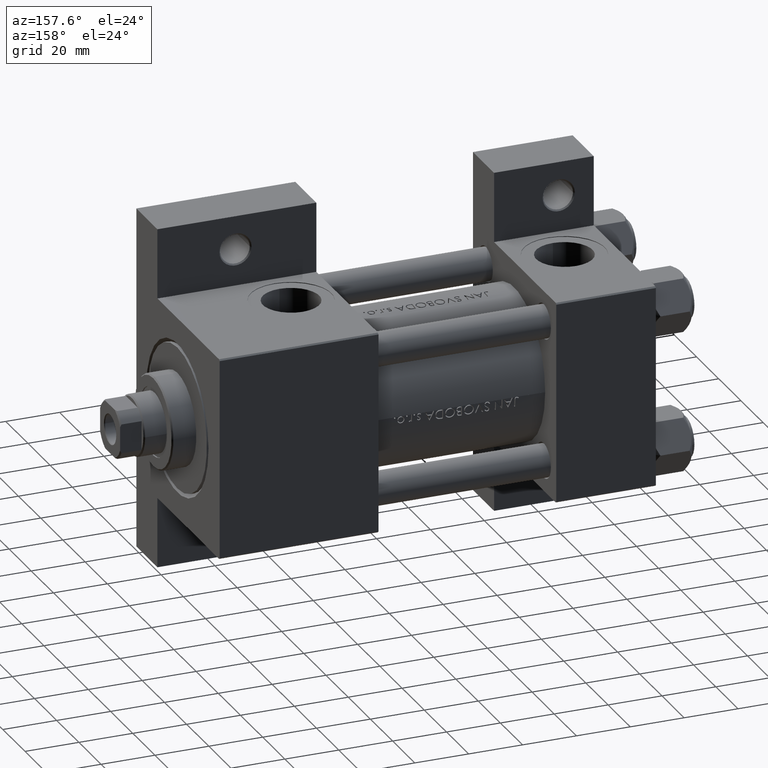
[diagram: clean part render]
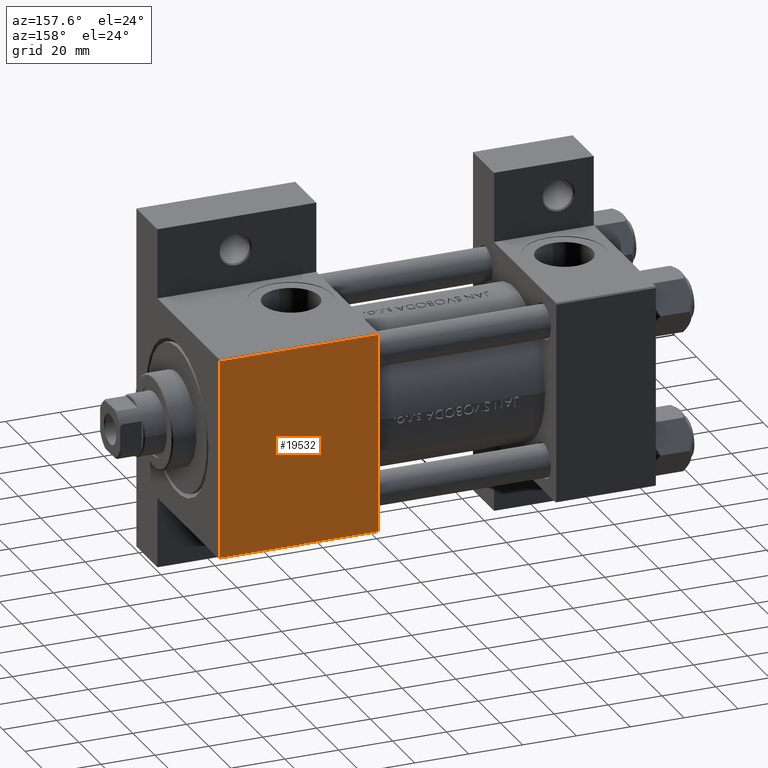
[diagram: same view with one face highlighted and labeled with its STEP entity id]
A machine part, auxiliary view. The second image highlights one B-rep face of the part: STEP entity #19532.
In plain terms, the highlighted planar face has unit normal (0, -1, -0).
Its self-contained STEP definition (entity closure, byte-faithful):
#167 = EDGE_CURVE ( 'NONE', #21725, #32218, #19119, .T. ) ;
#3604 = FACE_OUTER_BOUND ( 'NONE', #39808, .T. ) ;
#3992 = ORIENTED_EDGE ( 'NONE', *, *, #14477, .T. ) ;
#4275 = ORIENTED_EDGE ( 'NONE', *, *, #20928, .F. ) ;
#6846 = CARTESIAN_POINT ( 'NONE',  ( 103.0000000000000142, 37.50000000000000000, 37.49999999999999289 ) ) ;
#7333 = CARTESIAN_POINT ( 'NONE',  ( 103.0000000000000142, -37.00000000000000000, 37.49999999999997868 ) ) ;
#9508 = AXIS2_PLACEMENT_3D ( 'NONE', #14061, #41705, #36984 ) ;
#10487 = VECTOR ( 'NONE', #38063, 1000.000000000000000 ) ;
#14061 = CARTESIAN_POINT ( 'NONE',  ( 162.0000000000000000, 37.50000000000000000, 37.49999999999999289 ) ) ;
#14477 = EDGE_CURVE ( 'NONE', #31844, #21725, #26769, .T. ) ;
#15520 = DIRECTION ( 'NONE',  ( 0.000000000000000000, -1.000000000000000000, -1.850371707708594316E-16 ) ) ;
#19119 = LINE ( 'NONE', #45775, #10487 ) ;
#19250 = CARTESIAN_POINT ( 'NONE',  ( 162.0000000000000000, 37.50000000000000000, 37.49999999999999289 ) ) ;
#19532 = ADVANCED_FACE ( 'NONE', ( #3604 ), #29286, .F. ) ;
#19656 = ORIENTED_EDGE ( 'NONE', *, *, #167, .T. ) ;
#20928 = EDGE_CURVE ( 'NONE', #35054, #32218, #39164, .T. ) ;
#21264 = CARTESIAN_POINT ( 'NONE',  ( 103.0000000000000142, 37.00000000000000000, 37.49999999999999289 ) ) ;
#21725 = VERTEX_POINT ( 'NONE', #7333 ) ;
#22029 = DIRECTION ( 'NONE',  ( 0.000000000000000000, -1.000000000000000000, -1.850371707708594316E-16 ) ) ;
#23065 = ORIENTED_EDGE ( 'NONE', *, *, #41329, .T. ) ;
#26769 = LINE ( 'NONE', #6846, #38752 ) ;
#27984 = DIRECTION ( 'NONE',  ( -1.000000000000000000, 0.000000000000000000, 0.000000000000000000 ) ) ;
#29286 = PLANE ( 'NONE',  #9508 ) ;
#29461 = CARTESIAN_POINT ( 'NONE',  ( 162.0000000000000000, -37.00000000000000000, 37.49999999999997868 ) ) ;
#31060 = VECTOR ( 'NONE', #15520, 1000.000000000000000 ) ;
#31844 = VERTEX_POINT ( 'NONE', #21264 ) ;
#32218 = VERTEX_POINT ( 'NONE', #29461 ) ;
#35054 = VERTEX_POINT ( 'NONE', #46369 ) ;
#35645 = VECTOR ( 'NONE', #27984, 1000.000000000000000 ) ;
#36984 = DIRECTION ( 'NONE',  ( 0.000000000000000000, 1.000000000000000000, 1.850371707708594316E-16 ) ) ;
#38063 = DIRECTION ( 'NONE',  ( 1.000000000000000000, 0.000000000000000000, 0.000000000000000000 ) ) ;
#38752 = VECTOR ( 'NONE', #22029, 1000.000000000000000 ) ;
#39164 = LINE ( 'NONE', #19250, #31060 ) ;
#39657 = CARTESIAN_POINT ( 'NONE',  ( 103.0000000000000142, 37.00000000000000000, 37.49999999999999289 ) ) ;
#39808 = EDGE_LOOP ( 'NONE', ( #4275, #23065, #3992, #19656 ) ) ;
#41329 = EDGE_CURVE ( 'NONE', #35054, #31844, #46897, .T. ) ;
#41705 = DIRECTION ( 'NONE',  ( 0.000000000000000000, 1.850371707708594316E-16, -1.000000000000000000 ) ) ;
#45775 = CARTESIAN_POINT ( 'NONE',  ( 162.0000000000000000, -37.00000000000000000, 37.49999999999997868 ) ) ;
#46369 = CARTESIAN_POINT ( 'NONE',  ( 162.0000000000000000, 37.00000000000000000, 37.49999999999999289 ) ) ;
#46897 = LINE ( 'NONE', #39657, #35645 ) ;